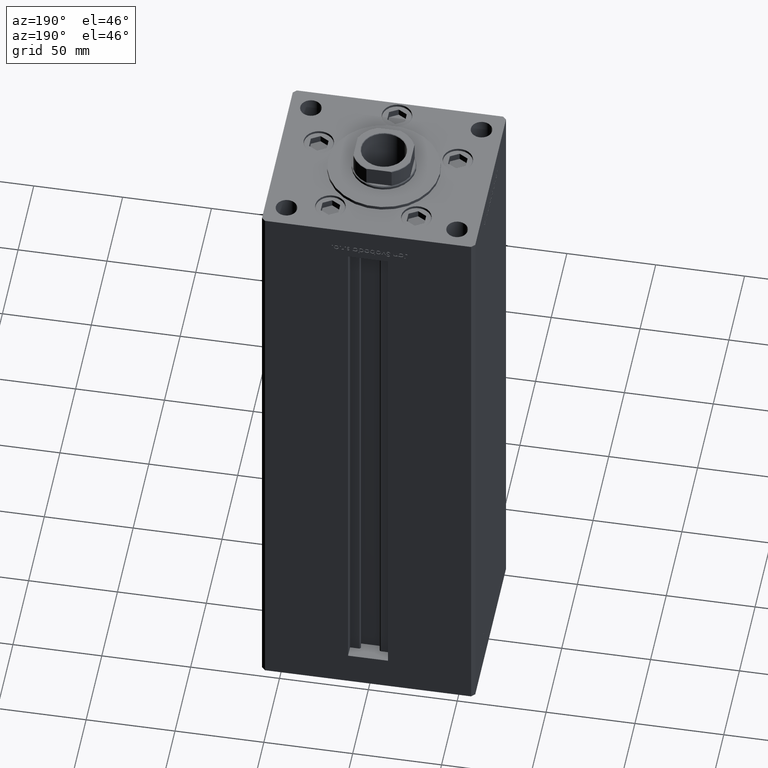
[diagram: clean part render]
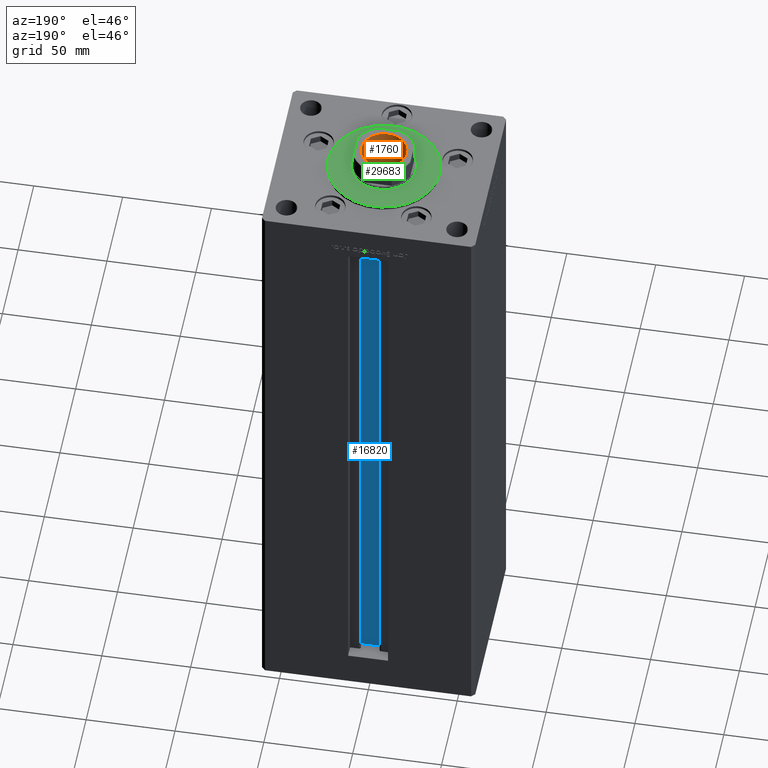
[diagram: same view with three faces highlighted in distinct colors, each labeled with its STEP entity id]
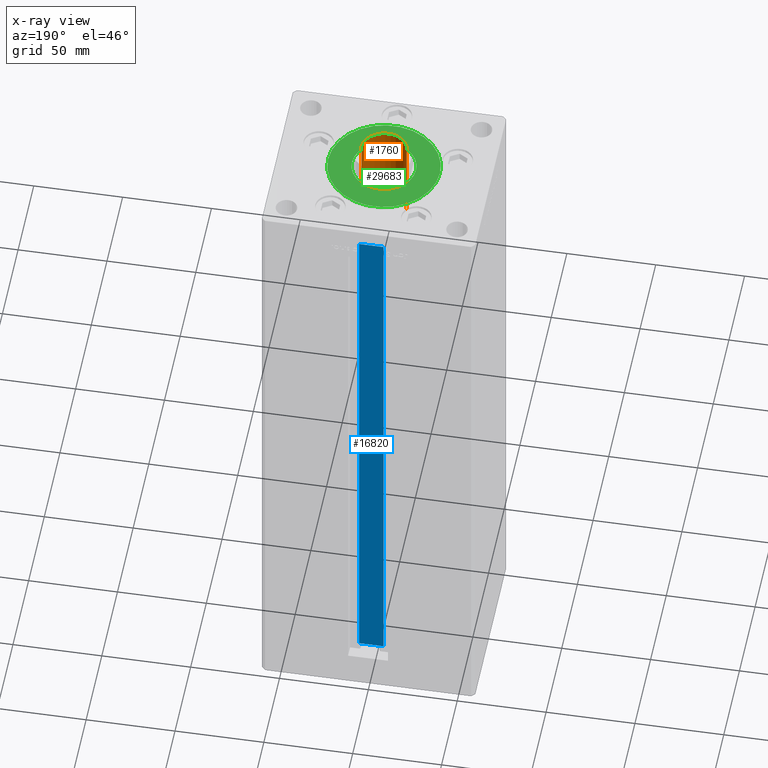
[diagram: x-ray of the same camera — body ghosted, the three highlighted faces saturated]
A machine part, auxiliary view with three faces highlighted in distinct colors.
The next image is the same camera in x-ray (body ghosted, the three faces saturated) — at least one of them is partly hidden behind the body in this view.
Their STEP definitions:

[orange] entity #1760 — the highlighted cylindrical surface (edge-blend (fillet) strip) has radius 12.75 mm, axis along (0, 0, 1).
#1760 = ADVANCED_FACE ( 'NONE', ( #38309 ), #13013, .F. ) ;
#2047 = DIRECTION ( 'NONE',  ( 0.000000000000000000, 0.000000000000000000, 1.000000000000000000 ) ) ;
#5908 = ORIENTED_EDGE ( 'NONE', *, *, #20966, .F. ) ;
#6024 = EDGE_CURVE ( 'NONE', #34220, #38575, #6773, .T. ) ;
#6773 = LINE ( 'NONE', #18635, #44429 ) ;
#7783 = CIRCLE ( 'NONE', #25323, 12.74999999999999467 ) ;
#8726 = CARTESIAN_POINT ( 'NONE',  ( 0.000000000000000000, 0.000000000000000000, 294.2500000000000000 ) ) ;
#10661 = EDGE_LOOP ( 'NONE', ( #5908, #27236, #41825, #25066 ) ) ;
#13013 = CYLINDRICAL_SURFACE ( 'NONE', #50210, 12.74999999999999467 ) ;
#18260 = DIRECTION ( 'NONE',  ( -0.000000000000000000, -0.000000000000000000, 1.000000000000000000 ) ) ;
#18635 = CARTESIAN_POINT ( 'NONE',  ( -12.74999999999999467, 1.561424668912874519E-15, 339.2500000000000000 ) ) ;
#20966 = EDGE_CURVE ( 'NONE', #34220, #31630, #26236, .T. ) ;
#21694 = CARTESIAN_POINT ( 'NONE',  ( 0.000000000000000000, 0.000000000000000000, 339.2500000000000000 ) ) ;
#22785 = EDGE_CURVE ( 'NONE', #38575, #44319, #7783, .T. ) ;
#23762 = VECTOR ( 'NONE', #18260, 1000.000000000000000 ) ;
#24539 = AXIS2_PLACEMENT_3D ( 'NONE', #8726, #36930, #29277 ) ;
#25066 = ORIENTED_EDGE ( 'NONE', *, *, #48827, .F. ) ;
#25323 = AXIS2_PLACEMENT_3D ( 'NONE', #30244, #2047, #37630 ) ;
#25633 = LINE ( 'NONE', #33811, #23762 ) ;
#26236 = CIRCLE ( 'NONE', #24539, 12.74999999999999112 ) ;
#27236 = ORIENTED_EDGE ( 'NONE', *, *, #6024, .T. ) ;
#28710 = CARTESIAN_POINT ( 'NONE',  ( 12.74999999999999112, 0.000000000000000000, 294.2500000000000000 ) ) ;
#29277 = DIRECTION ( 'NONE',  ( 1.000000000000000000, 0.000000000000000000, 0.000000000000000000 ) ) ;
#30244 = CARTESIAN_POINT ( 'NONE',  ( 0.000000000000000000, 0.000000000000000000, 338.9500000000000455 ) ) ;
#31630 = VERTEX_POINT ( 'NONE', #28710 ) ;
#32203 = CARTESIAN_POINT ( 'NONE',  ( 12.74999999999999467, 0.000000000000000000, 338.9500000000000455 ) ) ;
#33160 = CARTESIAN_POINT ( 'NONE',  ( -12.74999999999999467, 1.561424668912874519E-15, 338.9500000000000455 ) ) ;
#33811 = CARTESIAN_POINT ( 'NONE',  ( 12.74999999999999467, 0.000000000000000000, 339.2500000000000000 ) ) ;
#34220 = VERTEX_POINT ( 'NONE', #45096 ) ;
#36930 = DIRECTION ( 'NONE',  ( -0.000000000000000000, -0.000000000000000000, 1.000000000000000000 ) ) ;
#37630 = DIRECTION ( 'NONE',  ( 1.000000000000000000, 0.000000000000000000, 0.000000000000000000 ) ) ;
#38309 = FACE_OUTER_BOUND ( 'NONE', #10661, .T. ) ;
#38575 = VERTEX_POINT ( 'NONE', #33160 ) ;
#39189 = DIRECTION ( 'NONE',  ( -0.000000000000000000, -0.000000000000000000, 1.000000000000000000 ) ) ;
#41825 = ORIENTED_EDGE ( 'NONE', *, *, #22785, .T. ) ;
#44319 = VERTEX_POINT ( 'NONE', #32203 ) ;
#44429 = VECTOR ( 'NONE', #39189, 1000.000000000000000 ) ;
#45096 = CARTESIAN_POINT ( 'NONE',  ( -12.74999999999999112, 1.561424668912874125E-15, 294.2500000000000000 ) ) ;
#46200 = DIRECTION ( 'NONE',  ( 1.000000000000000000, 0.000000000000000000, 0.000000000000000000 ) ) ;
#48827 = EDGE_CURVE ( 'NONE', #31630, #44319, #25633, .T. ) ;
#49367 = DIRECTION ( 'NONE',  ( -0.000000000000000000, -0.000000000000000000, 1.000000000000000000 ) ) ;
#50210 = AXIS2_PLACEMENT_3D ( 'NONE', #21694, #49367, #46200 ) ;

[blue] entity #16820 — the highlighted planar face has unit normal (0, -1, 0).
#424 = VERTEX_POINT ( 'NONE', #51308 ) ;
#479 = EDGE_CURVE ( 'NONE', #37722, #424, #48903, .T. ) ;
#2725 = VERTEX_POINT ( 'NONE', #3828 ) ;
#3209 = CARTESIAN_POINT ( 'NONE',  ( 6.876153656360466826, 40.49999999999987210, 0.000000000000000000 ) ) ;
#3828 = CARTESIAN_POINT ( 'NONE',  ( -6.876153656360466826, 40.49999999999987210, 318.5000000000000000 ) ) ;
#6985 = EDGE_CURVE ( 'NONE', #424, #2725, #38884, .T. ) ;
#7237 = FACE_OUTER_BOUND ( 'NONE', #17037, .T. ) ;
#9200 = ORIENTED_EDGE ( 'NONE', *, *, #479, .F. ) ;
#10932 = DIRECTION ( 'NONE',  ( -1.000000000000000000, 0.000000000000000000, 0.000000000000000000 ) ) ;
#12219 = DIRECTION ( 'NONE',  ( 0.000000000000000000, -1.000000000000000000, -0.000000000000000000 ) ) ;
#12542 = DIRECTION ( 'NONE',  ( -0.000000000000000000, -0.000000000000000000, 1.000000000000000000 ) ) ;
#15809 = LINE ( 'NONE', #18995, #24547 ) ;
#16820 = ADVANCED_FACE ( 'NONE', ( #7237 ), #51502, .F. ) ;
#17037 = EDGE_LOOP ( 'NONE', ( #9200, #45785, #25265, #43917 ) ) ;
#18995 = CARTESIAN_POINT ( 'NONE',  ( 6.876153656360466826, 40.49999999999987210, 0.000000000000000000 ) ) ;
#20475 = EDGE_CURVE ( 'NONE', #23435, #2725, #38100, .T. ) ;
#23435 = VERTEX_POINT ( 'NONE', #35397 ) ;
#24547 = VECTOR ( 'NONE', #35080, 1000.000000000000000 ) ;
#25265 = ORIENTED_EDGE ( 'NONE', *, *, #20475, .T. ) ;
#32569 = CARTESIAN_POINT ( 'NONE',  ( 6.876153656360466826, 40.49999999999987210, 0.000000000000000000 ) ) ;
#34399 = CARTESIAN_POINT ( 'NONE',  ( 0.000000000000000000, 40.49999999999987210, 318.5000000000000000 ) ) ;
#34401 = DIRECTION ( 'NONE',  ( -0.000000000000000000, -0.000000000000000000, 1.000000000000000000 ) ) ;
#35080 = DIRECTION ( 'NONE',  ( 1.000000000000000000, -0.000000000000000000, -0.000000000000000000 ) ) ;
#35397 = CARTESIAN_POINT ( 'NONE',  ( -6.876153656360466826, 40.49999999999987210, 0.000000000000000000 ) ) ;
#35437 = CARTESIAN_POINT ( 'NONE',  ( 6.876153656360466826, 40.49999999999987210, 0.000000000000000000 ) ) ;
#36333 = VECTOR ( 'NONE', #34401, 1000.000000000000000 ) ;
#37722 = VERTEX_POINT ( 'NONE', #3209 ) ;
#37723 = VECTOR ( 'NONE', #10932, 1000.000000000000000 ) ;
#38100 = LINE ( 'NONE', #42316, #36333 ) ;
#38884 = LINE ( 'NONE', #34399, #37723 ) ;
#40150 = DIRECTION ( 'NONE',  ( 0.000000000000000000, 0.000000000000000000, -1.000000000000000000 ) ) ;
#42316 = CARTESIAN_POINT ( 'NONE',  ( -6.876153656360466826, 40.49999999999987210, 0.000000000000000000 ) ) ;
#43917 = ORIENTED_EDGE ( 'NONE', *, *, #6985, .F. ) ;
#44601 = AXIS2_PLACEMENT_3D ( 'NONE', #35437, #12219, #40150 ) ;
#45785 = ORIENTED_EDGE ( 'NONE', *, *, #47101, .F. ) ;
#47101 = EDGE_CURVE ( 'NONE', #23435, #37722, #15809, .T. ) ;
#48514 = VECTOR ( 'NONE', #12542, 1000.000000000000000 ) ;
#48903 = LINE ( 'NONE', #32569, #48514 ) ;
#51308 = CARTESIAN_POINT ( 'NONE',  ( 6.876153656360466826, 40.49999999999987210, 318.5000000000000000 ) ) ;
#51502 = PLANE ( 'NONE',  #44601 ) ;

[green] entity #29683 — the highlighted planar face has unit normal (0, 0, 1).
#2282 = AXIS2_PLACEMENT_3D ( 'NONE', #34073, #49103, #50144 ) ;
#3500 = ORIENTED_EDGE ( 'NONE', *, *, #40489, .F. ) ;
#4114 = ORIENTED_EDGE ( 'NONE', *, *, #6622, .T. ) ;
#4959 = ORIENTED_EDGE ( 'NONE', *, *, #7216, .F. ) ;
#5209 = CARTESIAN_POINT ( 'NONE',  ( 0.000000000000000000, -6.938893903907228378E-15, 2.000000000000000000 ) ) ;
#6128 = VERTEX_POINT ( 'NONE', #23613 ) ;
#6622 = EDGE_CURVE ( 'NONE', #37368, #14160, #9834, .T. ) ;
#7216 = EDGE_CURVE ( 'NONE', #28399, #6128, #17404, .T. ) ;
#8522 = CIRCLE ( 'NONE', #40505, 31.50000000000000000 ) ;
#9564 = DIRECTION ( 'NONE',  ( 0.000000000000000000, 0.000000000000000000, 1.000000000000000000 ) ) ;
#9834 = CIRCLE ( 'NONE', #51201, 31.50000000000000000 ) ;
#9936 = DIRECTION ( 'NONE',  ( 0.000000000000000000, 0.000000000000000000, 1.000000000000000000 ) ) ;
#10179 = CIRCLE ( 'NONE', #22795, 18.00000000000000000 ) ;
#10562 = CARTESIAN_POINT ( 'NONE',  ( 31.50000000000000000, -3.081256486593065689E-15, 2.000000000000000000 ) ) ;
#12489 = DIRECTION ( 'NONE',  ( 1.000000000000000000, 0.000000000000000000, 0.000000000000000000 ) ) ;
#14160 = VERTEX_POINT ( 'NONE', #10562 ) ;
#14506 = EDGE_LOOP ( 'NONE', ( #4959, #3500 ) ) ;
#14616 = CARTESIAN_POINT ( 'NONE',  ( -31.50000000000000000, -6.938893903907228378E-15, 2.000000000000000000 ) ) ;
#17185 = FACE_BOUND ( 'NONE', #14506, .T. ) ;
#17404 = CIRCLE ( 'NONE', #2282, 18.00000000000000000 ) ;
#18471 = ORIENTED_EDGE ( 'NONE', *, *, #20735, .T. ) ;
#20735 = EDGE_CURVE ( 'NONE', #14160, #37368, #8522, .T. ) ;
#21390 = CARTESIAN_POINT ( 'NONE',  ( 0.000000000000000000, -6.938893903907228378E-15, 2.000000000000000000 ) ) ;
#22175 = PLANE ( 'NONE',  #38135 ) ;
#22795 = AXIS2_PLACEMENT_3D ( 'NONE', #23588, #23857, #26782 ) ;
#23588 = CARTESIAN_POINT ( 'NONE',  ( 0.000000000000000000, -6.938893903907228378E-15, 2.000000000000000000 ) ) ;
#23613 = CARTESIAN_POINT ( 'NONE',  ( -18.00000000000000000, -4.734529665441992555E-15, 2.000000000000000000 ) ) ;
#23857 = DIRECTION ( 'NONE',  ( 0.000000000000000000, 0.000000000000000000, 1.000000000000000000 ) ) ;
#26010 = DIRECTION ( 'NONE',  ( 1.000000000000000000, 0.000000000000000000, 0.000000000000000000 ) ) ;
#26782 = DIRECTION ( 'NONE',  ( 1.000000000000000000, 0.000000000000000000, 0.000000000000000000 ) ) ;
#28399 = VERTEX_POINT ( 'NONE', #32033 ) ;
#29683 = ADVANCED_FACE ( 'NONE', ( #17185, #33506 ), #22175, .T. ) ;
#32033 = CARTESIAN_POINT ( 'NONE',  ( 18.00000000000000000, -6.938893903907228378E-15, 2.000000000000000000 ) ) ;
#33506 = FACE_OUTER_BOUND ( 'NONE', #40068, .T. ) ;
#34073 = CARTESIAN_POINT ( 'NONE',  ( 0.000000000000000000, -6.938893903907228378E-15, 2.000000000000000000 ) ) ;
#37368 = VERTEX_POINT ( 'NONE', #14616 ) ;
#37472 = DIRECTION ( 'NONE',  ( 1.000000000000000000, 0.000000000000000000, -0.000000000000000000 ) ) ;
#38135 = AXIS2_PLACEMENT_3D ( 'NONE', #21390, #41946, #37472 ) ;
#40068 = EDGE_LOOP ( 'NONE', ( #4114, #18471 ) ) ;
#40489 = EDGE_CURVE ( 'NONE', #6128, #28399, #10179, .T. ) ;
#40505 = AXIS2_PLACEMENT_3D ( 'NONE', #45682, #9564, #12489 ) ;
#41946 = DIRECTION ( 'NONE',  ( 0.000000000000000000, 0.000000000000000000, 1.000000000000000000 ) ) ;
#45682 = CARTESIAN_POINT ( 'NONE',  ( 0.000000000000000000, -6.938893903907228378E-15, 2.000000000000000000 ) ) ;
#49103 = DIRECTION ( 'NONE',  ( 0.000000000000000000, 0.000000000000000000, 1.000000000000000000 ) ) ;
#50144 = DIRECTION ( 'NONE',  ( 1.000000000000000000, 0.000000000000000000, 0.000000000000000000 ) ) ;
#51201 = AXIS2_PLACEMENT_3D ( 'NONE', #5209, #9936, #26010 ) ;